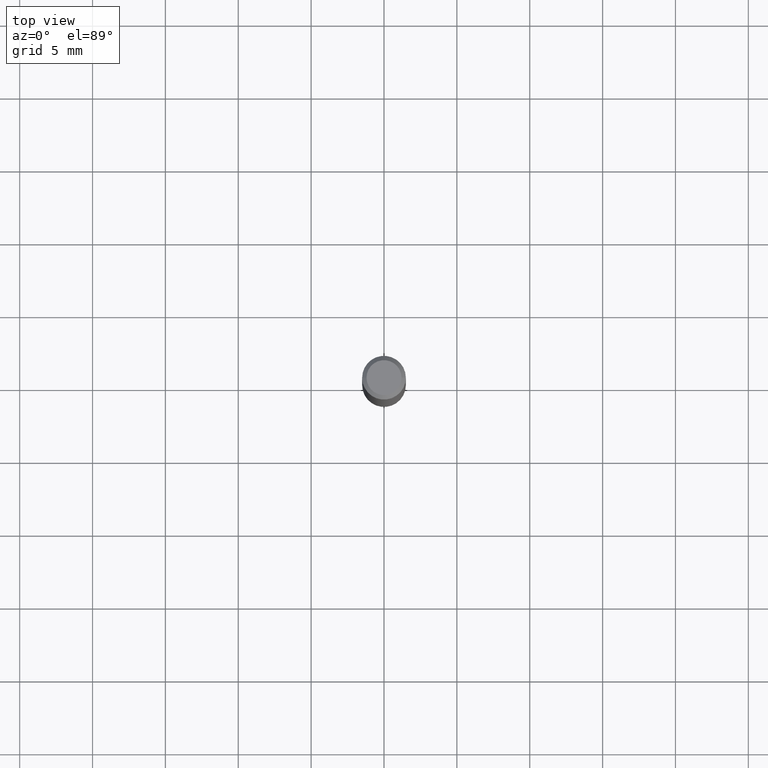
[diagram: clean part render]
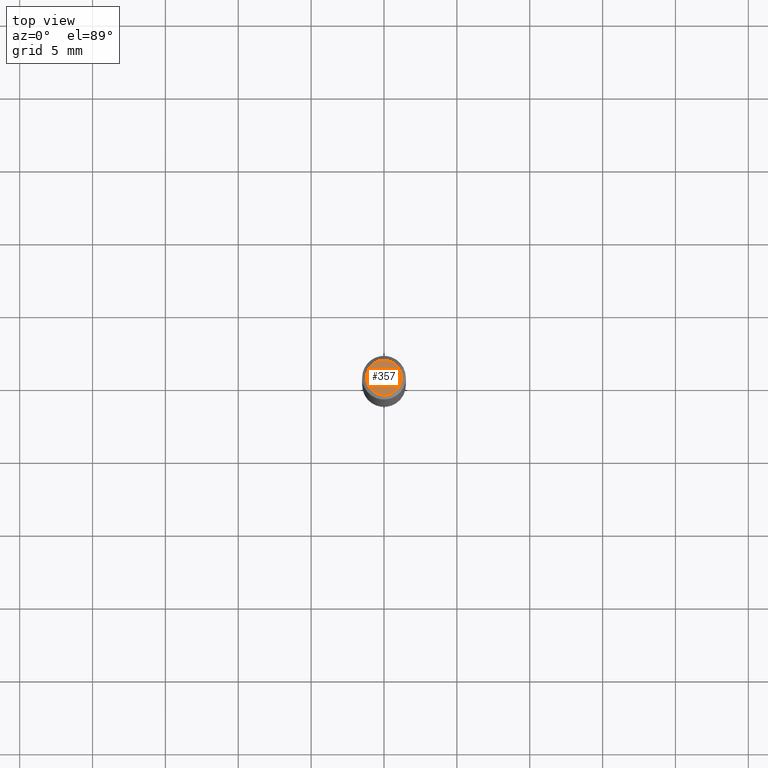
[diagram: same view with one face highlighted and labeled with its STEP entity id]
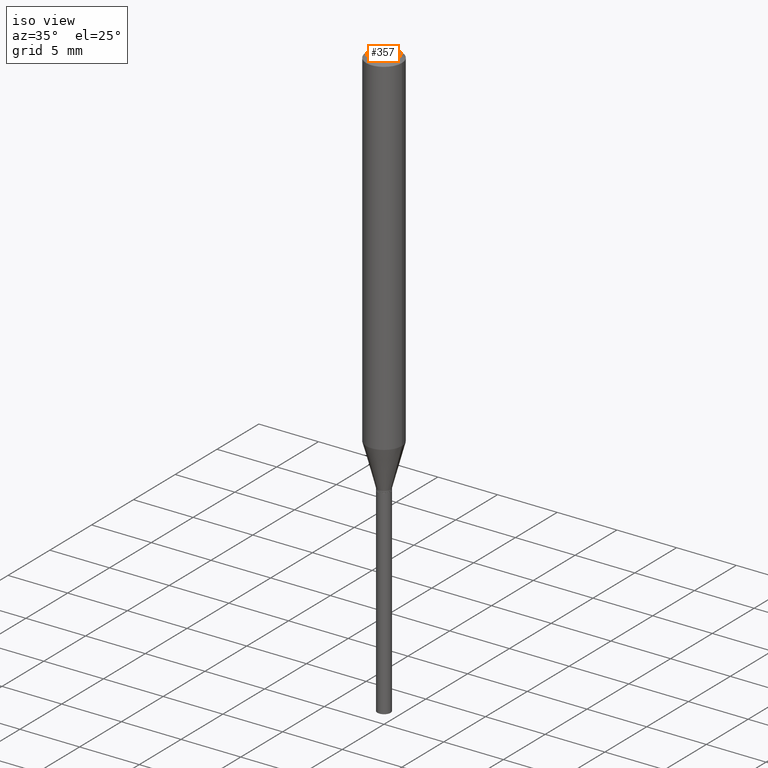
[diagram: same view with one face highlighted and labeled with its STEP entity id]
A machine part, top view. The second image highlights one B-rep face of the part: STEP entity #357.
A second angle (iso view) of the same face is appended — the face is thin or edge-on in the first view.
In plain terms, the highlighted planar face has unit normal (0, -0, -1).
Its self-contained STEP definition (entity closure, byte-faithful):
#8 = CIRCLE ( 'NONE', #375, 0.04724000000000000421 ) ;
#54 = EDGE_CURVE ( 'NONE', #456, #164, #8, .T. ) ;
#56 = CARTESIAN_POINT ( 'NONE',  ( -0.04724000000000000421, 3.504923541997677355E-16, -3.380025165670481712E-19 ) ) ;
#69 = CARTESIAN_POINT ( 'NONE',  ( 0.04724000000000000421, -3.852183633974369838E-16, -3.380025165621689721E-19 ) ) ;
#95 = DIRECTION ( 'NONE',  ( 1.000000000000000000, -6.982962677686266711E-15, 4.876185090822587894E-29 ) ) ;
#108 = AXIS2_PLACEMENT_3D ( 'NONE', #465, #431, #200 ) ;
#128 = PLANE ( 'NONE',  #108 ) ;
#161 = FACE_OUTER_BOUND ( 'NONE', #202, .T. ) ;
#164 = VERTEX_POINT ( 'NONE', #56 ) ;
#179 = CARTESIAN_POINT ( 'NONE',  ( 8.265746106709734507E-48, -1.180129479067563789E-33, -3.380025165646692144E-19 ) ) ;
#200 = DIRECTION ( 'NONE',  ( -1.000000000000000000, 6.982962677686265922E-15, -4.876176775795935793E-29 ) ) ;
#202 = EDGE_LOOP ( 'NONE', ( #455, #277 ) ) ;
#226 = EDGE_CURVE ( 'NONE', #164, #456, #384, .T. ) ;
#234 = DIRECTION ( 'NONE',  ( -2.445468806185136597E-29, 3.491481338843145583E-15, 1.000000000000000000 ) ) ;
#277 = ORIENTED_EDGE ( 'NONE', *, *, #54, .T. ) ;
#320 = CARTESIAN_POINT ( 'NONE',  ( 8.265746106709734507E-48, -1.180129479067563789E-33, -3.380025165646692144E-19 ) ) ;
#349 = DIRECTION ( 'NONE',  ( 1.000000000000000000, -6.982962677686266711E-15, 4.876185090822587894E-29 ) ) ;
#357 = ADVANCED_FACE ( 'NONE', ( #161 ), #128, .F. ) ;
#375 = AXIS2_PLACEMENT_3D ( 'NONE', #179, #487, #349 ) ;
#384 = CIRCLE ( 'NONE', #444, 0.04724000000000000421 ) ;
#431 = DIRECTION ( 'NONE',  ( 2.438088387897960049E-29, -3.491481338843145188E-15, -1.000000000000000000 ) ) ;
#444 = AXIS2_PLACEMENT_3D ( 'NONE', #320, #234, #95 ) ;
#455 = ORIENTED_EDGE ( 'NONE', *, *, #226, .T. ) ;
#456 = VERTEX_POINT ( 'NONE', #69 ) ;
#465 = CARTESIAN_POINT ( 'NONE',  ( 4.132873053354867254E-48, -5.900647395337818946E-34, -1.690012582823346072E-19 ) ) ;
#487 = DIRECTION ( 'NONE',  ( -2.445468806185136597E-29, 3.491481338843145583E-15, 1.000000000000000000 ) ) ;